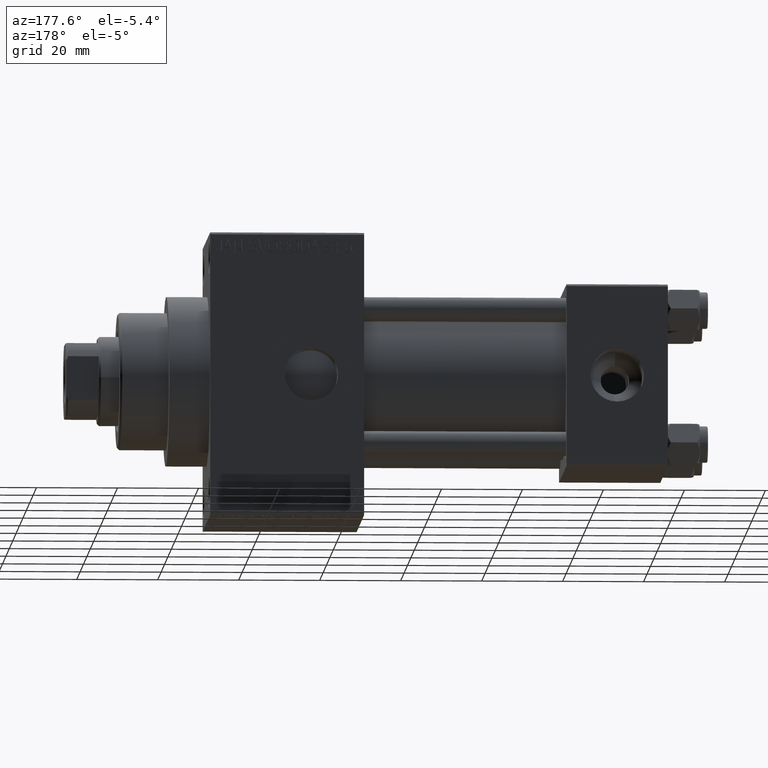
[diagram: clean part render]
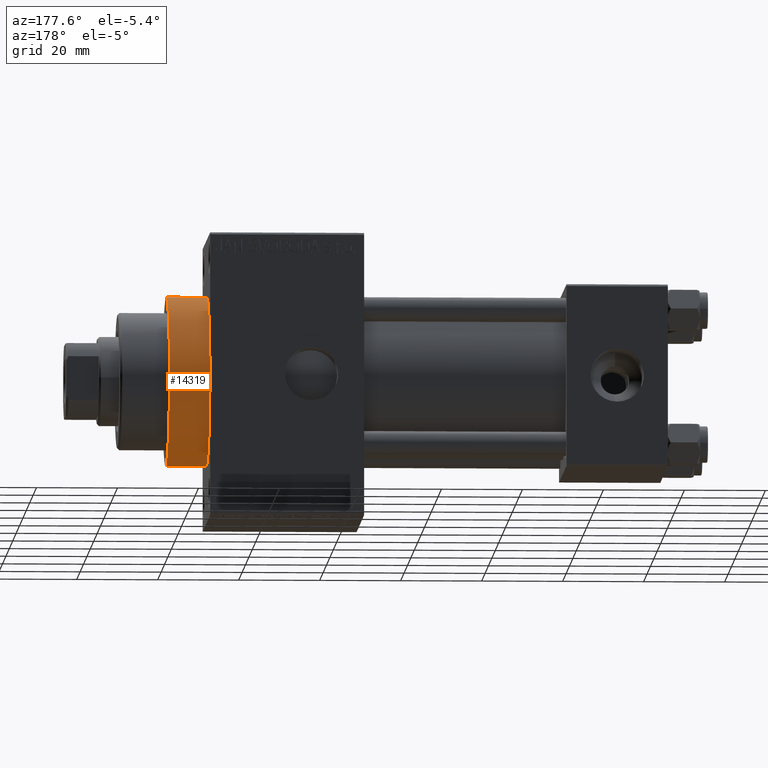
[diagram: same view with one face highlighted and labeled with its STEP entity id]
A machine part, auxiliary view. The second image highlights one B-rep face of the part: STEP entity #14319.
In plain terms, the highlighted cylindrical surface (partial cylindrical patch) has radius 21 mm, axis along (-1, -0, -0).
Its self-contained STEP definition (entity closure, byte-faithful):
#2596 = VERTEX_POINT ( 'NONE', #14835 ) ;
#4134 = ORIENTED_EDGE ( 'NONE', *, *, #8143, .F. ) ;
#6258 = CARTESIAN_POINT ( 'NONE',  ( 123.0000000000000142, 0.000000000000000000, 21.00000000000000000 ) ) ;
#6992 = DIRECTION ( 'NONE',  ( -1.000000000000000000, -0.000000000000000000, -0.000000000000000000 ) ) ;
#7522 = CIRCLE ( 'NONE', #30520, 21.00000000000000000 ) ;
#8143 = EDGE_CURVE ( 'NONE', #2596, #39485, #37708, .T. ) ;
#8627 = DIRECTION ( 'NONE',  ( 0.000000000000000000, 0.000000000000000000, -1.000000000000000000 ) ) ;
#11064 = ORIENTED_EDGE ( 'NONE', *, *, #45049, .F. ) ;
#12015 = ORIENTED_EDGE ( 'NONE', *, *, #34264, .T. ) ;
#14319 = ADVANCED_FACE ( 'NONE', ( #40995 ), #18178, .T. ) ;
#14601 = DIRECTION ( 'NONE',  ( 0.000000000000000000, 0.000000000000000000, -1.000000000000000000 ) ) ;
#14835 = CARTESIAN_POINT ( 'NONE',  ( 123.0000000000000142, 2.571758278209441661E-15, -21.00000000000000000 ) ) ;
#16362 = AXIS2_PLACEMENT_3D ( 'NONE', #49097, #34184, #14601 ) ;
#16807 = CARTESIAN_POINT ( 'NONE',  ( 113.0000000000000142, 0.000000000000000000, 0.000000000000000000 ) ) ;
#18178 = CYLINDRICAL_SURFACE ( 'NONE', #32319, 21.00000000000000000 ) ;
#21888 = EDGE_CURVE ( 'NONE', #40739, #27276, #7522, .T. ) ;
#23139 = VECTOR ( 'NONE', #45934, 1000.000000000000000 ) ;
#23225 = ORIENTED_EDGE ( 'NONE', *, *, #21888, .T. ) ;
#23604 = EDGE_LOOP ( 'NONE', ( #4134, #12015, #23225, #11064 ) ) ;
#27276 = VERTEX_POINT ( 'NONE', #39399 ) ;
#30520 = AXIS2_PLACEMENT_3D ( 'NONE', #16807, #35877, #8627 ) ;
#30773 = LINE ( 'NONE', #31025, #23139 ) ;
#31025 = CARTESIAN_POINT ( 'NONE',  ( 123.0000000000000142, 0.000000000000000000, 21.00000000000000000 ) ) ;
#32319 = AXIS2_PLACEMENT_3D ( 'NONE', #44474, #6992, #47962 ) ;
#33175 = VECTOR ( 'NONE', #41518, 1000.000000000000000 ) ;
#34058 = LINE ( 'NONE', #34562, #33175 ) ;
#34184 = DIRECTION ( 'NONE',  ( 1.000000000000000000, 0.000000000000000000, 0.000000000000000000 ) ) ;
#34264 = EDGE_CURVE ( 'NONE', #2596, #40739, #34058, .T. ) ;
#34562 = CARTESIAN_POINT ( 'NONE',  ( 123.0000000000000142, 2.571758278209441661E-15, -21.00000000000000000 ) ) ;
#35877 = DIRECTION ( 'NONE',  ( 1.000000000000000000, 0.000000000000000000, 0.000000000000000000 ) ) ;
#37708 = CIRCLE ( 'NONE', #16362, 21.00000000000000000 ) ;
#39399 = CARTESIAN_POINT ( 'NONE',  ( 113.0000000000000142, 0.000000000000000000, 21.00000000000000000 ) ) ;
#39485 = VERTEX_POINT ( 'NONE', #6258 ) ;
#40739 = VERTEX_POINT ( 'NONE', #40859 ) ;
#40859 = CARTESIAN_POINT ( 'NONE',  ( 113.0000000000000142, 2.571758278209441661E-15, -21.00000000000000000 ) ) ;
#40995 = FACE_OUTER_BOUND ( 'NONE', #23604, .T. ) ;
#41518 = DIRECTION ( 'NONE',  ( -1.000000000000000000, -0.000000000000000000, -0.000000000000000000 ) ) ;
#44474 = CARTESIAN_POINT ( 'NONE',  ( 123.0000000000000142, 0.000000000000000000, 0.000000000000000000 ) ) ;
#45049 = EDGE_CURVE ( 'NONE', #39485, #27276, #30773, .T. ) ;
#45934 = DIRECTION ( 'NONE',  ( -1.000000000000000000, -0.000000000000000000, -0.000000000000000000 ) ) ;
#47962 = DIRECTION ( 'NONE',  ( 0.000000000000000000, 0.000000000000000000, 1.000000000000000000 ) ) ;
#49097 = CARTESIAN_POINT ( 'NONE',  ( 123.0000000000000142, 0.000000000000000000, 0.000000000000000000 ) ) ;